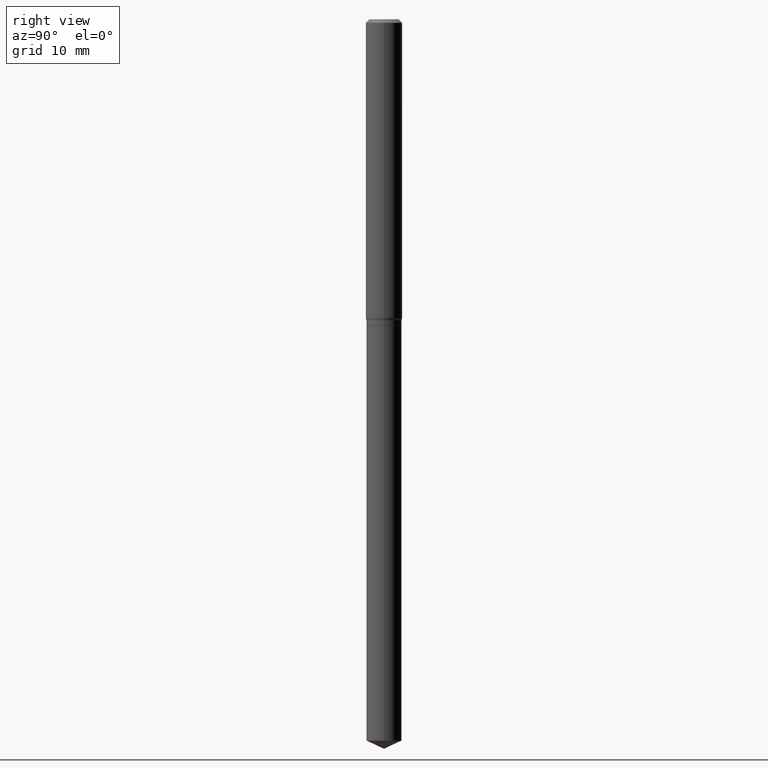
[diagram: clean part render]
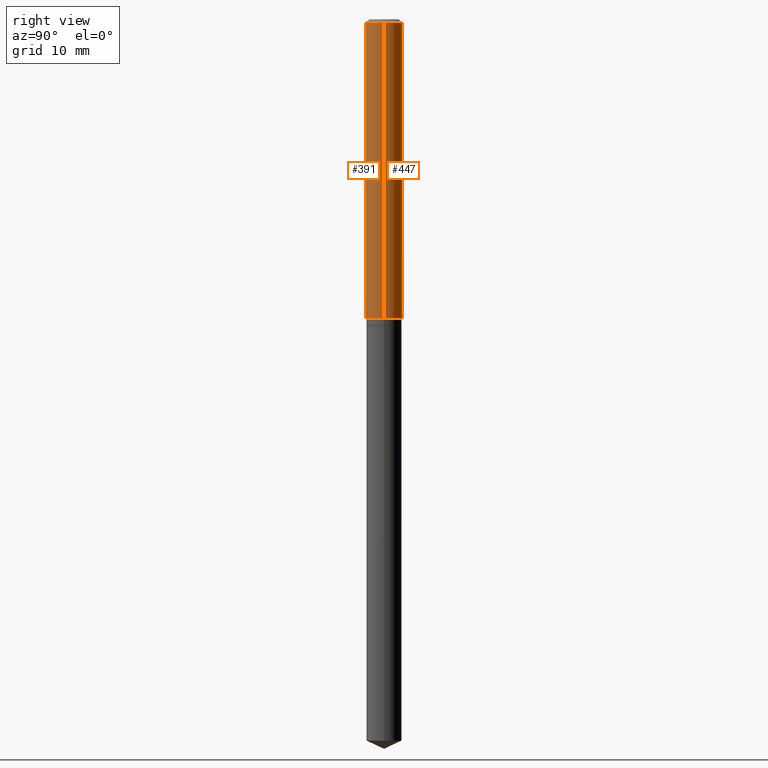
[diagram: same view with one multi-face feature highlighted, each face labeled with its STEP entity id]
A machine part, right view. The highlighted faces form ONE feature: a constant-radius fillet chain: 2 tangent blend faces with common blend radius 1.4999 mm. The faces share edges in the B-rep.
Their STEP definitions:
[1] entity #447 (Cylinder):
#8 = DIRECTION ( 'NONE',  ( 1.000000000000000000, -6.982962677686266711E-15, 0.000000000000000000 ) ) ;
#13 = VECTOR ( 'NONE', #385, 39.37007874015748143 ) ;
#38 = EDGE_CURVE ( 'NONE', #160, #418, #97, .T. ) ;
#39 = CIRCLE ( 'NONE', #321, 0.05904999999999999832 ) ;
#43 = CARTESIAN_POINT ( 'NONE',  ( -0.05904999999999999832, -1.290085090285191875E-15, -0.01181000000000007218 ) ) ;
#50 = CARTESIAN_POINT ( 'NONE',  ( 0.05905000000000006077, -4.123439461173744764E-16, 2.879382386107503023E-30 ) ) ;
#65 = CARTESIAN_POINT ( 'NONE',  ( 2.366046095294905252E-29, -3.378086756891326980E-15, -0.9675225009252403918 ) ) ;
#97 = CIRCLE ( 'NONE', #229, 0.05905000000000011628 ) ;
#102 = DIRECTION ( 'NONE',  ( -2.445468806185136597E-29, 3.491481338843145583E-15, 1.000000000000000000 ) ) ;
#120 = VECTOR ( 'NONE', #232, 39.37007874015748143 ) ;
#126 = LINE ( 'NONE', #50, #120 ) ;
#130 = DIRECTION ( 'NONE',  ( -2.445468806185136597E-29, 3.491481338843145583E-15, 1.000000000000000000 ) ) ;
#148 = DIRECTION ( 'NONE',  ( 1.000000000000000000, -6.982962677686266711E-15, 0.000000000000000000 ) ) ;
#157 = CARTESIAN_POINT ( 'NONE',  ( 0.05904999999999999832, -4.535783407291118600E-16, -0.01181000000000007218 ) ) ;
#160 = VERTEX_POINT ( 'NONE', #300 ) ;
#169 = FACE_OUTER_BOUND ( 'NONE', #210, .T. ) ;
#173 = DIRECTION ( 'NONE',  ( 1.000000000000000000, -6.982962677686266711E-15, 4.876176775795935793E-29 ) ) ;
#199 = ORIENTED_EDGE ( 'NONE', *, *, #302, .F. ) ;
#205 = ORIENTED_EDGE ( 'NONE', *, *, #267, .F. ) ;
#210 = EDGE_LOOP ( 'NONE', ( #250, #319, #199, #205 ) ) ;
#229 = AXIS2_PLACEMENT_3D ( 'NONE', #65, #482, #148 ) ;
#232 = DIRECTION ( 'NONE',  ( -2.445468806185136877E-29, 3.491481338843145188E-15, 1.000000000000000000 ) ) ;
#250 = ORIENTED_EDGE ( 'NONE', *, *, #38, .T. ) ;
#267 = EDGE_CURVE ( 'NONE', #160, #390, #126, .T. ) ;
#300 = CARTESIAN_POINT ( 'NONE',  ( 0.05905000000000011628, -3.790430703008701506E-15, -0.9675225009252403918 ) ) ;
#302 = EDGE_CURVE ( 'NONE', #390, #396, #39, .T. ) ;
#319 = ORIENTED_EDGE ( 'NONE', *, *, #359, .T. ) ;
#321 = AXIS2_PLACEMENT_3D ( 'NONE', #343, #130, #8 ) ;
#343 = CARTESIAN_POINT ( 'NONE',  ( 2.888098660104664204E-31, -4.123439461173780263E-17, -0.01181000000000007218 ) ) ;
#357 = CYLINDRICAL_SURFACE ( 'NONE', #374, 0.05905000000000006077 ) ;
#359 = EDGE_CURVE ( 'NONE', #418, #396, #382, .T. ) ;
#365 = CARTESIAN_POINT ( 'NONE',  ( 0.000000000000000000, 0.000000000000000000, 0.000000000000000000 ) ) ;
#374 = AXIS2_PLACEMENT_3D ( 'NONE', #365, #102, #173 ) ;
#382 = LINE ( 'NONE', #455, #13 ) ;
#385 = DIRECTION ( 'NONE',  ( -2.445468806185136877E-29, 3.491481338843145188E-15, 1.000000000000000000 ) ) ;
#390 = VERTEX_POINT ( 'NONE', #157 ) ;
#396 = VERTEX_POINT ( 'NONE', #43 ) ;
#418 = VERTEX_POINT ( 'NONE', #479 ) ;
#447 = ADVANCED_FACE ( 'NONE', ( #169 ), #357, .T. ) ;
#455 = CARTESIAN_POINT ( 'NONE',  ( -0.05905000000000006077, 4.195754854663395916E-16, -2.904631170795524694E-30 ) ) ;
#479 = CARTESIAN_POINT ( 'NONE',  ( -0.05905000000000011628, -2.958511271424986698E-15, -0.9675225009252403918 ) ) ;
#482 = DIRECTION ( 'NONE',  ( -2.445468806185136597E-29, 3.491481338843145583E-15, 1.000000000000000000 ) ) ;
[2] entity #391 (Cylinder):
#13 = VECTOR ( 'NONE', #385, 39.37007874015748143 ) ;
#28 = EDGE_CURVE ( 'NONE', #418, #160, #77, .T. ) ;
#36 = DIRECTION ( 'NONE',  ( 1.000000000000000000, -6.982962677686266711E-15, 0.000000000000000000 ) ) ;
#43 = CARTESIAN_POINT ( 'NONE',  ( -0.05904999999999999832, -1.290085090285191875E-15, -0.01181000000000007218 ) ) ;
#45 = DIRECTION ( 'NONE',  ( -2.445468806185136597E-29, 3.491481338843145583E-15, 1.000000000000000000 ) ) ;
#50 = CARTESIAN_POINT ( 'NONE',  ( 0.05905000000000006077, -4.123439461173744764E-16, 2.879382386107503023E-30 ) ) ;
#58 = CIRCLE ( 'NONE', #264, 0.05904999999999999832 ) ;
#77 = CIRCLE ( 'NONE', #212, 0.05905000000000011628 ) ;
#117 = ORIENTED_EDGE ( 'NONE', *, *, #28, .T. ) ;
#120 = VECTOR ( 'NONE', #232, 39.37007874015748143 ) ;
#123 = CARTESIAN_POINT ( 'NONE',  ( 0.000000000000000000, 0.000000000000000000, 0.000000000000000000 ) ) ;
#126 = LINE ( 'NONE', #50, #120 ) ;
#135 = ORIENTED_EDGE ( 'NONE', *, *, #192, .F. ) ;
#157 = CARTESIAN_POINT ( 'NONE',  ( 0.05904999999999999832, -4.535783407291118600E-16, -0.01181000000000007218 ) ) ;
#160 = VERTEX_POINT ( 'NONE', #300 ) ;
#164 = DIRECTION ( 'NONE',  ( 1.000000000000000000, -6.982962677686266711E-15, 4.876176775795935793E-29 ) ) ;
#192 = EDGE_CURVE ( 'NONE', #396, #390, #58, .T. ) ;
#196 = ORIENTED_EDGE ( 'NONE', *, *, #359, .F. ) ;
#203 = ORIENTED_EDGE ( 'NONE', *, *, #267, .T. ) ;
#212 = AXIS2_PLACEMENT_3D ( 'NONE', #255, #332, #399 ) ;
#232 = DIRECTION ( 'NONE',  ( -2.445468806185136877E-29, 3.491481338843145188E-15, 1.000000000000000000 ) ) ;
#255 = CARTESIAN_POINT ( 'NONE',  ( 2.366046095294905252E-29, -3.378086756891326980E-15, -0.9675225009252403918 ) ) ;
#264 = AXIS2_PLACEMENT_3D ( 'NONE', #340, #338, #36 ) ;
#267 = EDGE_CURVE ( 'NONE', #160, #390, #126, .T. ) ;
#300 = CARTESIAN_POINT ( 'NONE',  ( 0.05905000000000011628, -3.790430703008701506E-15, -0.9675225009252403918 ) ) ;
#308 = FACE_OUTER_BOUND ( 'NONE', #429, .T. ) ;
#332 = DIRECTION ( 'NONE',  ( -2.445468806185136597E-29, 3.491481338843145583E-15, 1.000000000000000000 ) ) ;
#338 = DIRECTION ( 'NONE',  ( -2.445468806185136597E-29, 3.491481338843145583E-15, 1.000000000000000000 ) ) ;
#340 = CARTESIAN_POINT ( 'NONE',  ( 2.888098660104664204E-31, -4.123439461173780263E-17, -0.01181000000000007218 ) ) ;
#359 = EDGE_CURVE ( 'NONE', #418, #396, #382, .T. ) ;
#382 = LINE ( 'NONE', #455, #13 ) ;
#385 = DIRECTION ( 'NONE',  ( -2.445468806185136877E-29, 3.491481338843145188E-15, 1.000000000000000000 ) ) ;
#390 = VERTEX_POINT ( 'NONE', #157 ) ;
#391 = ADVANCED_FACE ( 'NONE', ( #308 ), #458, .T. ) ;
#396 = VERTEX_POINT ( 'NONE', #43 ) ;
#397 = AXIS2_PLACEMENT_3D ( 'NONE', #123, #45, #164 ) ;
#399 = DIRECTION ( 'NONE',  ( 1.000000000000000000, -6.982962677686266711E-15, 0.000000000000000000 ) ) ;
#418 = VERTEX_POINT ( 'NONE', #479 ) ;
#429 = EDGE_LOOP ( 'NONE', ( #196, #117, #203, #135 ) ) ;
#455 = CARTESIAN_POINT ( 'NONE',  ( -0.05905000000000006077, 4.195754854663395916E-16, -2.904631170795524694E-30 ) ) ;
#458 = CYLINDRICAL_SURFACE ( 'NONE', #397, 0.05905000000000006077 ) ;
#479 = CARTESIAN_POINT ( 'NONE',  ( -0.05905000000000011628, -2.958511271424986698E-15, -0.9675225009252403918 ) ) ;